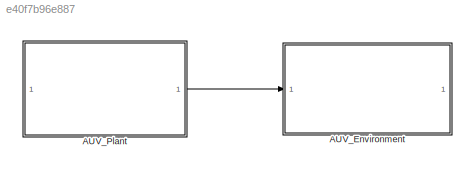
MODEL slx_e40f7b96e887
KIND model
CONFIG AbsTol = auto
CONFIG EnableMultiTasking = off
CONFIG FixedStep = auto
CONFIG MaxStep = auto
CONFIG MinStep = auto
CONFIG RelTol = 1e-3
CONFIG SampleTimeConstraint = Unconstrained
CONFIG SolverName = VariableStepAuto
CONFIG StartTime = 0.0
CONFIG StopTime = 10.0
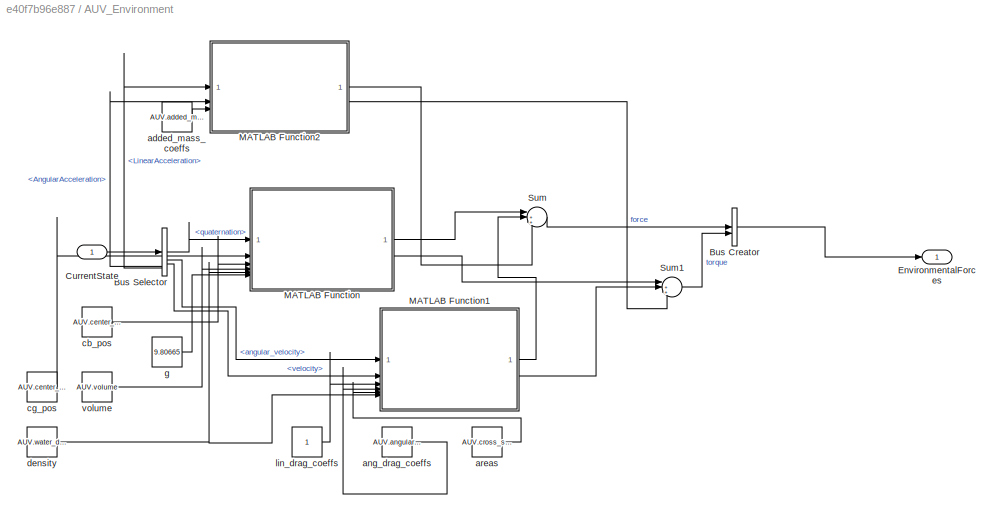
BLOCK [SubSystem] AUV_Environment
BLOCK [BusCreator] AUV_Environment/Bus Creator
  DisplayOption = bar
  InheritFromInputs = on
  Inputs = 2
BLOCK [BusSelector] AUV_Environment/Bus Selector
  OutputSignals = quaternation,angular_velocity,velocity,AngularAcceleration,LinearAcceleration
BLOCK [Inport] AUV_Environment/CurrentState
BLOCK [Outport] AUV_Environment/EnvironmentalForces
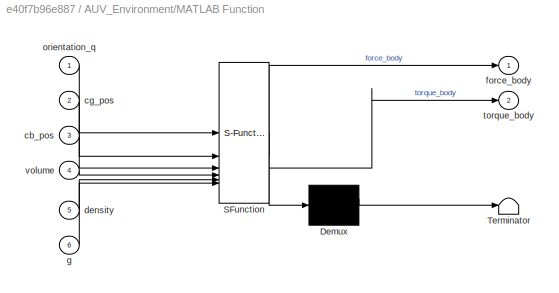
BLOCK [SubSystem] AUV_Environment/MATLAB Function
  ErrorFcn = Stateflow.Translate.translate
  PermitHierarchicalResolution = ExplicitOnly
  SFBlockType = MATLAB Function
  TreatAsAtomicUnit = on
BLOCK [Demux] AUV_Environment/MATLAB Function/ Demux 
  Outputs = 1
BLOCK [S-Function] AUV_Environment/MATLAB Function/ SFunction 
  EnableBusSupport = on
  FunctionName = sf_sfun
  PortCounts = [6 3]
  SFcnIsStateOwnerBlock = off
  SFunctionDeploymentMode = off
  Tag = Stateflow S-Function 2
BLOCK [Terminator] AUV_Environment/MATLAB Function/ Terminator 
BLOCK [Inport] AUV_Environment/MATLAB Function/cb_pos
  Port = 3
BLOCK [Inport] AUV_Environment/MATLAB Function/cg_pos
  Port = 2
BLOCK [Inport] AUV_Environment/MATLAB Function/density
  Port = 5
BLOCK [Outport] AUV_Environment/MATLAB Function/force_body
BLOCK [Inport] AUV_Environment/MATLAB Function/g
  Port = 6
BLOCK [Inport] AUV_Environment/MATLAB Function/orientation_q
BLOCK [Outport] AUV_Environment/MATLAB Function/torque_body
  Port = 2
BLOCK [Inport] AUV_Environment/MATLAB Function/volume
  Port = 4
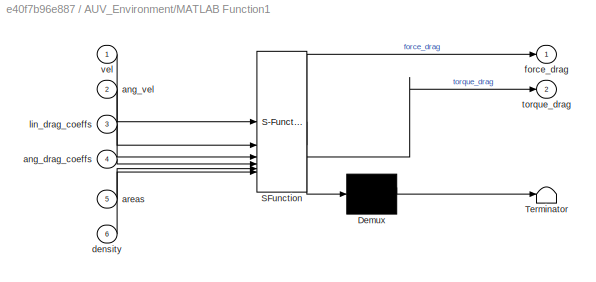
BLOCK [SubSystem] AUV_Environment/MATLAB Function1
  ErrorFcn = Stateflow.Translate.translate
  PermitHierarchicalResolution = ExplicitOnly
  SFBlockType = MATLAB Function
  TreatAsAtomicUnit = on
BLOCK [Demux] AUV_Environment/MATLAB Function1/ Demux 
  Outputs = 1
BLOCK [S-Function] AUV_Environment/MATLAB Function1/ SFunction 
  EnableBusSupport = on
  FunctionName = sf_sfun
  PortCounts = [6 3]
  SFcnIsStateOwnerBlock = off
  SFunctionDeploymentMode = off
  Tag = Stateflow S-Function 1
BLOCK [Terminator] AUV_Environment/MATLAB Function1/ Terminator 
BLOCK [Inport] AUV_Environment/MATLAB Function1/ang_drag_coeffs
  Port = 4
BLOCK [Inport] AUV_Environment/MATLAB Function1/ang_vel
  Port = 2
BLOCK [Inport] AUV_Environment/MATLAB Function1/areas
  Port = 5
BLOCK [Inport] AUV_Environment/MATLAB Function1/density
  Port = 6
BLOCK [Outport] AUV_Environment/MATLAB Function1/force_drag
BLOCK [Inport] AUV_Environment/MATLAB Function1/lin_drag_coeffs
  Port = 3
BLOCK [Outport] AUV_Environment/MATLAB Function1/torque_drag
  Port = 2
BLOCK [Inport] AUV_Environment/MATLAB Function1/vel
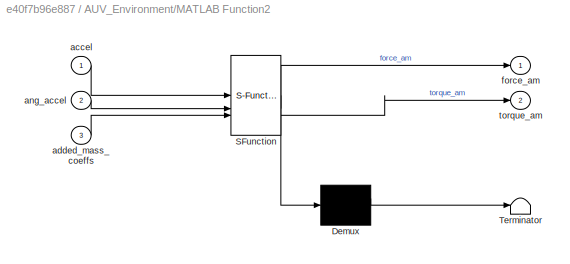
BLOCK [SubSystem] AUV_Environment/MATLAB Function2
  ErrorFcn = Stateflow.Translate.translate
  PermitHierarchicalResolution = ExplicitOnly
  SFBlockType = MATLAB Function
  TreatAsAtomicUnit = on
BLOCK [Demux] AUV_Environment/MATLAB Function2/ Demux 
  Outputs = 1
BLOCK [S-Function] AUV_Environment/MATLAB Function2/ SFunction 
  EnableBusSupport = off
  FunctionName = sf_sfun
  PortCounts = [3 3]
  SFcnIsStateOwnerBlock = off
  SFunctionDeploymentMode = off
  Tag = Stateflow S-Function 3
BLOCK [Terminator] AUV_Environment/MATLAB Function2/ Terminator 
BLOCK [Inport] AUV_Environment/MATLAB Function2/accel
BLOCK [Inport] AUV_Environment/MATLAB Function2/added_mass_coeffs
  Port = 3
BLOCK [Inport] AUV_Environment/MATLAB Function2/ang_accel
  Port = 2
BLOCK [Outport] AUV_Environment/MATLAB Function2/force_am
BLOCK [Outport] AUV_Environment/MATLAB Function2/torque_am
  Port = 2
BLOCK [Sum] AUV_Environment/Sum
  Inputs = |+++
BLOCK [Sum] AUV_Environment/Sum1
  Inputs = |+++
BLOCK [Constant] AUV_Environment/added_mass_coeffs
  Value = AUV.added_mass
BLOCK [Constant] AUV_Environment/ang_drag_coeffs
  Value = AUV.angular_drag_coeffs
BLOCK [Constant] AUV_Environment/areas
  Value = AUV.cross_sectional_areas
BLOCK [Constant] AUV_Environment/cb_pos
  Value = AUV.center_of_buoyancy
BLOCK [Constant] AUV_Environment/cg_pos
  Value = AUV.center_of_gravity
BLOCK [Constant] AUV_Environment/density
  Value = AUV.water_density
BLOCK [Constant] AUV_Environment/g
  Value = 9.80665
BLOCK [Constant] AUV_Environment/lin_drag_coeffs
BLOCK [Constant] AUV_Environment/volume
  Value = AUV.volume
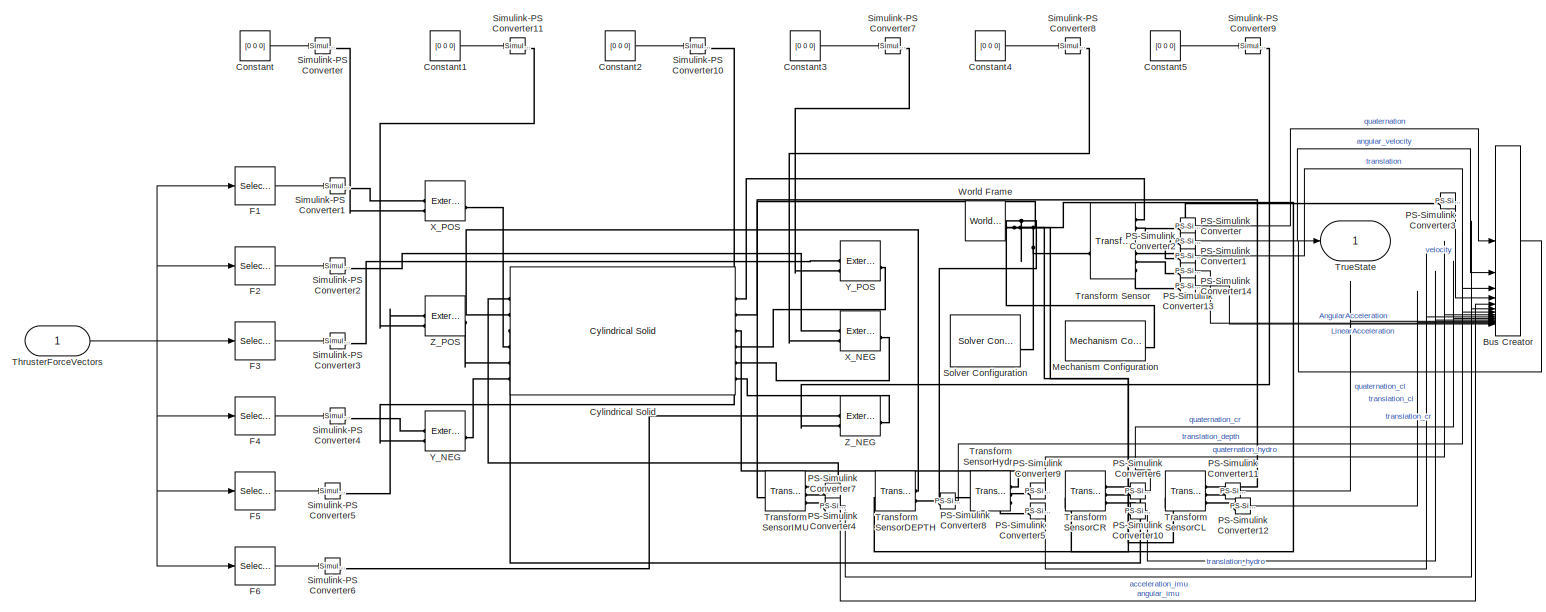
[diagram: AUV_Plant - part 1/1, most of the canvas]
BLOCK [SubSystem] AUV_Plant
BLOCK [BusCreator] AUV_Plant/Bus Creator
  DisplayOption = bar
  InheritFromInputs = on
  Inputs = 15
BLOCK [Constant] AUV_Plant/Constant
  Value = [0 0 0]
BLOCK [Constant] AUV_Plant/Constant1
  Value = [0 0 0]
BLOCK [Constant] AUV_Plant/Constant2
  Value = [0 0 0]
BLOCK [Constant] AUV_Plant/Constant3
  Value = [0 0 0]
BLOCK [Constant] AUV_Plant/Constant4
  Value = [0 0 0]
BLOCK [Constant] AUV_Plant/Constant5
  Value = [0 0 0]
BLOCK [Reference] AUV_Plant/Cylindrical Solid  REF=sm_lib/Body Elements/Cylindrical Solid
  SourceBlock = sm_lib/Body Elements/Cylindrical Solid
  SourceType = Cylindrical Solid
BLOCK [Selector] AUV_Plant/F1
  IndexOptions = Index vector (dialog),Select all
  Indices = 1,1
  InputPortWidth = 3
  NumberOfDimensions = 2
  OutputSizes = 1,1
BLOCK [Selector] AUV_Plant/F2
  IndexOptions = Index vector (dialog),Select all
  Indices = 2,1
  InputPortWidth = 3
  NumberOfDimensions = 2
  OutputSizes = 1,1
BLOCK [Selector] AUV_Plant/F3
  IndexOptions = Index vector (dialog),Select all
  Indices = 3,1
  InputPortWidth = 3
  NumberOfDimensions = 2
  OutputSizes = 1,1
BLOCK [Selector] AUV_Plant/F4
  IndexOptions = Index vector (dialog),Select all
  Indices = 4,1
  InputPortWidth = 3
  NumberOfDimensions = 2
  OutputSizes = 1,1
BLOCK [Selector] AUV_Plant/F5
  IndexOptions = Index vector (dialog),Select all
  Indices = 5,1
  InputPortWidth = 3
  NumberOfDimensions = 2
  OutputSizes = 1,1
BLOCK [Selector] AUV_Plant/F6
  IndexOptions = Index vector (dialog),Select all
  Indices = 6,1
  InputPortWidth = 3
  NumberOfDimensions = 2
  OutputSizes = 1,1
BLOCK [Reference] AUV_Plant/Mechanism Configuration  REF=sm_lib/Utilities/Mechanism
Configuration
  NameLocation = top
  SourceBlock = sm_lib/Utilities/Mechanism\nConfiguration
  SourceType = Mechanism\nConfiguration
BLOCK [Reference] AUV_Plant/PS-Simulink Converter  REF=nesl_utility/PS-Simulink
Converter
  SourceBlock = nesl_utility/PS-Simulink\nConverter
  SourceType = PS-Simulink\nConverter
BLOCK [Reference] AUV_Plant/PS-Simulink Converter1  REF=nesl_utility/PS-Simulink
Converter
  SourceBlock = nesl_utility/PS-Simulink\nConverter
  SourceType = PS-Simulink\nConverter
BLOCK [Reference] AUV_Plant/PS-Simulink Converter10  REF=nesl_utility/PS-Simulink
Converter
  SourceBlock = nesl_utility/PS-Simulink\nConverter
  SourceType = PS-Simulink\nConverter
BLOCK [Reference] AUV_Plant/PS-Simulink Converter11  REF=nesl_utility/PS-Simulink
Converter
  SourceBlock = nesl_utility/PS-Simulink\nConverter
  SourceType = PS-Simulink\nConverter
BLOCK [Reference] AUV_Plant/PS-Simulink Converter12  REF=nesl_utility/PS-Simulink
Converter
  SourceBlock = nesl_utility/PS-Simulink\nConverter
  SourceType = PS-Simulink\nConverter
BLOCK [Reference] AUV_Plant/PS-Simulink Converter13  REF=nesl_utility/PS-Simulink
Converter
  SourceBlock = nesl_utility/PS-Simulink\nConverter
  SourceType = PS-Simulink\nConverter
BLOCK [Reference] AUV_Plant/PS-Simulink Converter14  REF=nesl_utility/PS-Simulink
Converter
  SourceBlock = nesl_utility/PS-Simulink\nConverter
  SourceType = PS-Simulink\nConverter
BLOCK [Reference] AUV_Plant/PS-Simulink Converter2  REF=nesl_utility/PS-Simulink
Converter
  SourceBlock = nesl_utility/PS-Simulink\nConverter
  SourceType = PS-Simulink\nConverter
BLOCK [Reference] AUV_Plant/PS-Simulink Converter3  REF=nesl_utility/PS-Simulink
Converter
  SourceBlock = nesl_utility/PS-Simulink\nConverter
  SourceType = PS-Simulink\nConverter
BLOCK [Reference] AUV_Plant/PS-Simulink Converter4  REF=nesl_utility/PS-Simulink
Converter
  SourceBlock = nesl_utility/PS-Simulink\nConverter
  SourceType = PS-Simulink\nConverter
BLOCK [Reference] AUV_Plant/PS-Simulink Converter5  REF=nesl_utility/PS-Simulink
Converter
  SourceBlock = nesl_utility/PS-Simulink\nConverter
  SourceType = PS-Simulink\nConverter
BLOCK [Reference] AUV_Plant/PS-Simulink Converter6  REF=nesl_utility/PS-Simulink
Converter
  SourceBlock = nesl_utility/PS-Simulink\nConverter
  SourceType = PS-Simulink\nConverter
BLOCK [Reference] AUV_Plant/PS-Simulink Converter7  REF=nesl_utility/PS-Simulink
Converter
  SourceBlock = nesl_utility/PS-Simulink\nConverter
  SourceType = PS-Simulink\nConverter
BLOCK [Reference] AUV_Plant/PS-Simulink Converter8  REF=nesl_utility/PS-Simulink
Converter
  SourceBlock = nesl_utility/PS-Simulink\nConverter
  SourceType = PS-Simulink\nConverter
BLOCK [Reference] AUV_Plant/PS-Simulink Converter9  REF=nesl_utility/PS-Simulink
Converter
  SourceBlock = nesl_utility/PS-Simulink\nConverter
  SourceType = PS-Simulink\nConverter
BLOCK [Reference] AUV_Plant/Simulink-PS Converter  REF=nesl_utility/Simulink-PS
Converter
  SourceBlock = nesl_utility/Simulink-PS\nConverter
  SourceType = Simulink-PS\nConverter
BLOCK [Reference] AUV_Plant/Simulink-PS Converter1  REF=nesl_utility/Simulink-PS
Converter
  SourceBlock = nesl_utility/Simulink-PS\nConverter
  SourceType = Simulink-PS\nConverter
BLOCK [Reference] AUV_Plant/Simulink-PS Converter10  REF=nesl_utility/Simulink-PS
Converter
  SourceBlock = nesl_utility/Simulink-PS\nConverter
  SourceType = Simulink-PS\nConverter
BLOCK [Reference] AUV_Plant/Simulink-PS Converter11  REF=nesl_utility/Simulink-PS
Converter
  SourceBlock = nesl_utility/Simulink-PS\nConverter
  SourceType = Simulink-PS\nConverter
BLOCK [Reference] AUV_Plant/Simulink-PS Converter2  REF=nesl_utility/Simulink-PS
Converter
  SourceBlock = nesl_utility/Simulink-PS\nConverter
  SourceType = Simulink-PS\nConverter
BLOCK [Reference] AUV_Plant/Simulink-PS Converter3  REF=nesl_utility/Simulink-PS
Converter
  SourceBlock = nesl_utility/Simulink-PS\nConverter
  SourceType = Simulink-PS\nConverter
BLOCK [Reference] AUV_Plant/Simulink-PS Converter4  REF=nesl_utility/Simulink-PS
Converter
  SourceBlock = nesl_utility/Simulink-PS\nConverter
  SourceType = Simulink-PS\nConverter
BLOCK [Reference] AUV_Plant/Simulink-PS Converter5  REF=nesl_utility/Simulink-PS
Converter
  SourceBlock = nesl_utility/Simulink-PS\nConverter
  SourceType = Simulink-PS\nConverter
BLOCK [Reference] AUV_Plant/Simulink-PS Converter6  REF=nesl_utility/Simulink-PS
Converter
  SourceBlock = nesl_utility/Simulink-PS\nConverter
  SourceType = Simulink-PS\nConverter
BLOCK [Reference] AUV_Plant/Simulink-PS Converter7  REF=nesl_utility/Simulink-PS
Converter
  SourceBlock = nesl_utility/Simulink-PS\nConverter
  SourceType = Simulink-PS\nConverter
BLOCK [Reference] AUV_Plant/Simulink-PS Converter8  REF=nesl_utility/Simulink-PS
Converter
  SourceBlock = nesl_utility/Simulink-PS\nConverter
  SourceType = Simulink-PS\nConverter
BLOCK [Reference] AUV_Plant/Simulink-PS Converter9  REF=nesl_utility/Simulink-PS
Converter
  SourceBlock = nesl_utility/Simulink-PS\nConverter
  SourceType = Simulink-PS\nConverter
BLOCK [Reference] AUV_Plant/Solver Configuration  REF=nesl_utility/Solver
Configuration
  SourceBlock = nesl_utility/Solver\nConfiguration
  SourceType = Solver\nConfiguration
BLOCK [Inport] AUV_Plant/ThrusterForceVectors
  PortDimensions = [6 3]
BLOCK [Reference] AUV_Plant/Transform Sensor  REF=sm_lib/Frames and
Transforms/Transform
Sensor
  SourceBlock = sm_lib/Frames and\nTransforms/Transform\nSensor
  SourceType = Transform\nSensor
BLOCK [Reference] AUV_Plant/Transform SensorCL  REF=sm_lib/Frames and
Transforms/Transform
Sensor
  SourceBlock = sm_lib/Frames and\nTransforms/Transform\nSensor
  SourceType = Transform\nSensor
BLOCK [Reference] AUV_Plant/Transform SensorCR  REF=sm_lib/Frames and
Transforms/Transform
Sensor
  SourceBlock = sm_lib/Frames and\nTransforms/Transform\nSensor
  SourceType = Transform\nSensor
BLOCK [Reference] AUV_Plant/Transform SensorDEPTH  REF=sm_lib/Frames and
Transforms/Transform
Sensor
  SourceBlock = sm_lib/Frames and\nTransforms/Transform\nSensor
  SourceType = Transform\nSensor
BLOCK [Reference] AUV_Plant/Transform SensorHydro  REF=sm_lib/Frames and
Transforms/Transform
Sensor
  SourceBlock = sm_lib/Frames and\nTransforms/Transform\nSensor
  SourceType = Transform\nSensor
BLOCK [Reference] AUV_Plant/Transform SensorIMU  REF=sm_lib/Frames and
Transforms/Transform
Sensor
  SourceBlock = sm_lib/Frames and\nTransforms/Transform\nSensor
  SourceType = Transform\nSensor
BLOCK [Outport] AUV_Plant/TrueState
BLOCK [Reference] AUV_Plant/World Frame  REF=sm_lib/Frames and
Transforms/World Frame
  SourceBlock = sm_lib/Frames and\nTransforms/World Frame
  SourceType = World Frame
BLOCK [Reference] AUV_Plant/X_NEG  REF=sm_lib/Forces and
Torques/External Force
and Torque
  SourceBlock = sm_lib/Forces and\nTorques/External Force\nand Torque
  SourceType = External Force\nand Torque
BLOCK [Reference] AUV_Plant/X_POS  REF=sm_lib/Forces and
Torques/External Force
and Torque
  SourceBlock = sm_lib/Forces and\nTorques/External Force\nand Torque
  SourceType = External Force\nand Torque
BLOCK [Reference] AUV_Plant/Y_NEG  REF=sm_lib/Forces and
Torques/External Force
and Torque
  SourceBlock = sm_lib/Forces and\nTorques/External Force\nand Torque
  SourceType = External Force\nand Torque
BLOCK [Reference] AUV_Plant/Y_POS  REF=sm_lib/Forces and
Torques/External Force
and Torque
  SourceBlock = sm_lib/Forces and\nTorques/External Force\nand Torque
  SourceType = External Force\nand Torque
BLOCK [Reference] AUV_Plant/Z_NEG  REF=sm_lib/Forces and
Torques/External Force
and Torque
  SourceBlock = sm_lib/Forces and\nTorques/External Force\nand Torque
  SourceType = External Force\nand Torque
BLOCK [Reference] AUV_Plant/Z_POS  REF=sm_lib/Forces and
Torques/External Force
and Torque
  SourceBlock = sm_lib/Forces and\nTorques/External Force\nand Torque
  SourceType = External Force\nand Torque
LINE AUV_Environment/Bus Creator:1 -> AUV_Environment/EnvironmentalForces:1
LINE AUV_Environment/Bus Selector:1 -> AUV_Environment/MATLAB Function:1
LINE AUV_Environment/Bus Selector:2 -> AUV_Environment/MATLAB Function1:1
LINE AUV_Environment/Bus Selector:3 -> AUV_Environment/MATLAB Function1:2
LINE AUV_Environment/Bus Selector:4 -> AUV_Environment/MATLAB Function2:2
LINE AUV_Environment/Bus Selector:5 -> AUV_Environment/MATLAB Function2:1
LINE AUV_Environment/CurrentState:1 -> AUV_Environment/Bus Selector:1
LINE AUV_Environment/MATLAB Function1:1 -> AUV_Environment/Sum:2
LINE AUV_Environment/MATLAB Function1:2 -> AUV_Environment/Sum1:2
LINE AUV_Environment/MATLAB Function2:1 -> AUV_Environment/Sum:3
LINE AUV_Environment/MATLAB Function2:2 -> AUV_Environment/Sum1:3
LINE AUV_Environment/MATLAB Function:1 -> AUV_Environment/Sum:1
LINE AUV_Environment/MATLAB Function:2 -> AUV_Environment/Sum1:1
LINE AUV_Environment/Sum1:1 -> AUV_Environment/Bus Creator:2
LINE AUV_Environment/Sum:1 -> AUV_Environment/Bus Creator:1
LINE AUV_Environment/added_mass_coeffs:1 -> AUV_Environment/MATLAB Function2:3
LINE AUV_Environment/ang_drag_coeffs:1 -> AUV_Environment/MATLAB Function1:4
LINE AUV_Environment/areas:1 -> AUV_Environment/MATLAB Function1:5
LINE AUV_Environment/cb_pos:1 -> AUV_Environment/MATLAB Function:3
LINE AUV_Environment/cg_pos:1 -> AUV_Environment/MATLAB Function:2
NET AUV_Environment/density:1 -> AUV_Environment/MATLAB Function1:6, AUV_Environment/MATLAB Function:5
LINE AUV_Environment/g:1 -> AUV_Environment/MATLAB Function:6
LINE AUV_Environment/lin_drag_coeffs:1 -> AUV_Environment/MATLAB Function1:3
LINE AUV_Environment/volume:1 -> AUV_Environment/MATLAB Function:4
LINE AUV_Plant/Bus Creator:1 -> AUV_Plant/TrueState:1
LINE AUV_Plant/Constant1:1 -> AUV_Plant/Simulink-PS Converter11:1
LINE AUV_Plant/Constant2:1 -> AUV_Plant/Simulink-PS Converter10:1
LINE AUV_Plant/Constant3:1 -> AUV_Plant/Simulink-PS Converter7:1
LINE AUV_Plant/Constant4:1 -> AUV_Plant/Simulink-PS Converter8:1
LINE AUV_Plant/Constant5:1 -> AUV_Plant/Simulink-PS Converter9:1
LINE AUV_Plant/Constant:1 -> AUV_Plant/Simulink-PS Converter:1
LINE AUV_Plant/F1:1 -> AUV_Plant/Simulink-PS Converter1:1
LINE AUV_Plant/F2:1 -> AUV_Plant/Simulink-PS Converter2:1
LINE AUV_Plant/F3:1 -> AUV_Plant/Simulink-PS Converter3:1
LINE AUV_Plant/F4:1 -> AUV_Plant/Simulink-PS Converter4:1
LINE AUV_Plant/F5:1 -> AUV_Plant/Simulink-PS Converter5:1
LINE AUV_Plant/F6:1 -> AUV_Plant/Simulink-PS Converter6:1
LINE AUV_Plant/PS-Simulink Converter10:1 -> AUV_Plant/Bus Creator:11
LINE AUV_Plant/PS-Simulink Converter11:1 -> AUV_Plant/Bus Creator:12
LINE AUV_Plant/PS-Simulink Converter12:1 -> AUV_Plant/Bus Creator:13
LINE AUV_Plant/PS-Simulink Converter13:1 -> AUV_Plant/Bus Creator:14
LINE AUV_Plant/PS-Simulink Converter14:1 -> AUV_Plant/Bus Creator:15
LINE AUV_Plant/PS-Simulink Converter1:1 -> AUV_Plant/Bus Creator:3
LINE AUV_Plant/PS-Simulink Converter2:1 -> AUV_Plant/Bus Creator:2
LINE AUV_Plant/PS-Simulink Converter3:1 -> AUV_Plant/Bus Creator:4
LINE AUV_Plant/PS-Simulink Converter4:1 -> AUV_Plant/Bus Creator:5
LINE AUV_Plant/PS-Simulink Converter5:1 -> AUV_Plant/Bus Creator:9
LINE AUV_Plant/PS-Simulink Converter6:1 -> AUV_Plant/Bus Creator:10
LINE AUV_Plant/PS-Simulink Converter7:1 -> AUV_Plant/Bus Creator:6
LINE AUV_Plant/PS-Simulink Converter8:1 -> AUV_Plant/Bus Creator:7
LINE AUV_Plant/PS-Simulink Converter9:1 -> AUV_Plant/Bus Creator:8
LINE AUV_Plant/PS-Simulink Converter:1 -> AUV_Plant/Bus Creator:1
NET AUV_Plant/ThrusterForceVectors:1 -> AUV_Plant/F1:1, AUV_Plant/F2:1, AUV_Plant/F3:1, AUV_Plant/F4:1, AUV_Plant/F5:1, AUV_Plant/F6:1
LINE AUV_Plant:1 -> AUV_Environment:1
PLINE AUV_Plant/Cylindrical Solid:LConn1 -- AUV_Plant/Transform SensorIMU:RConn1
PLINE AUV_Plant/Cylindrical Solid:LConn2 -- AUV_Plant/Transform SensorDEPTH:RConn1
PLINE AUV_Plant/Cylindrical Solid:LConn3 -- AUV_Plant/Transform SensorCR:RConn1
PLINE AUV_Plant/Cylindrical Solid:LConn4 -- AUV_Plant/X_POS:RConn1
PLINE AUV_Plant/Cylindrical Solid:LConn5 -- AUV_Plant/Z_POS:RConn1
PLINE AUV_Plant/Cylindrical Solid:LConn6 -- AUV_Plant/Y_NEG:RConn1
PLINE AUV_Plant/Cylindrical Solid:RConn1 -- AUV_Plant/Transform Sensor:RConn1
PLINE AUV_Plant/Cylindrical Solid:RConn2 -- AUV_Plant/Transform SensorCL:RConn1
PLINE AUV_Plant/Cylindrical Solid:RConn3 -- AUV_Plant/Transform SensorHydro:RConn1
PLINE AUV_Plant/Cylindrical Solid:RConn4 -- AUV_Plant/Y_POS:RConn1
PLINE AUV_Plant/Cylindrical Solid:RConn5 -- AUV_Plant/X_NEG:RConn1
PLINE AUV_Plant/Cylindrical Solid:RConn6 -- AUV_Plant/Z_NEG:RConn1
PNET net1: AUV_Plant/Mechanism Configuration:RConn1 -- AUV_Plant/Solver Configuration:RConn1 -- AUV_Plant/Transform Sensor:LConn1 -- AUV_Plant/Transform SensorCL:LConn1 -- AUV_Plant/Transform SensorCR:LConn1 -- AUV_Plant/Transform SensorDEPTH:LConn1 -- AUV_Plant/Transform SensorHydro:LConn1 -- AUV_Plant/Transform SensorIMU:LConn1 -- AUV_Plant/World Frame:RConn1
PLINE AUV_Plant/PS-Simulink Converter10:LConn1 -- AUV_Plant/Transform SensorCR:RConn3
PLINE AUV_Plant/PS-Simulink Converter11:LConn1 -- AUV_Plant/Transform SensorCL:RConn2
PLINE AUV_Plant/PS-Simulink Converter12:LConn1 -- AUV_Plant/Transform SensorCL:RConn3
PLINE AUV_Plant/PS-Simulink Converter13:LConn1 -- AUV_Plant/Transform Sensor:RConn6
PLINE AUV_Plant/PS-Simulink Converter14:LConn1 -- AUV_Plant/Transform Sensor:RConn7
PLINE AUV_Plant/PS-Simulink Converter1:LConn1 -- AUV_Plant/Transform Sensor:RConn4
PLINE AUV_Plant/PS-Simulink Converter2:LConn1 -- AUV_Plant/Transform Sensor:RConn3
PLINE AUV_Plant/PS-Simulink Converter3:LConn1 -- AUV_Plant/Transform Sensor:RConn5
PLINE AUV_Plant/PS-Simulink Converter4:LConn1 -- AUV_Plant/Transform SensorIMU:RConn2
PLINE AUV_Plant/PS-Simulink Converter5:LConn1 -- AUV_Plant/Transform SensorHydro:RConn3
PLINE AUV_Plant/PS-Simulink Converter6:LConn1 -- AUV_Plant/Transform SensorCR:RConn2
PLINE AUV_Plant/PS-Simulink Converter7:LConn1 -- AUV_Plant/Transform SensorIMU:RConn3
PLINE AUV_Plant/PS-Simulink Converter8:LConn1 -- AUV_Plant/Transform SensorDEPTH:RConn2
PLINE AUV_Plant/PS-Simulink Converter9:LConn1 -- AUV_Plant/Transform SensorHydro:RConn2
PLINE AUV_Plant/PS-Simulink Converter:LConn1 -- AUV_Plant/Transform Sensor:RConn2
PLINE AUV_Plant/Simulink-PS Converter10:RConn1 -- AUV_Plant/Y_NEG:LConn2
PLINE AUV_Plant/Simulink-PS Converter11:RConn1 -- AUV_Plant/Z_POS:LConn2
PLINE AUV_Plant/Simulink-PS Converter1:RConn1 -- AUV_Plant/X_POS:LConn1
PLINE AUV_Plant/Simulink-PS Converter2:RConn1 -- AUV_Plant/X_NEG:LConn1
PLINE AUV_Plant/Simulink-PS Converter3:RConn1 -- AUV_Plant/Y_POS:LConn1
PLINE AUV_Plant/Simulink-PS Converter4:RConn1 -- AUV_Plant/Y_NEG:LConn1
PLINE AUV_Plant/Simulink-PS Converter5:RConn1 -- AUV_Plant/Z_POS:LConn1
PLINE AUV_Plant/Simulink-PS Converter6:RConn1 -- AUV_Plant/Z_NEG:LConn1
PLINE AUV_Plant/Simulink-PS Converter7:RConn1 -- AUV_Plant/Y_POS:LConn2
PLINE AUV_Plant/Simulink-PS Converter8:RConn1 -- AUV_Plant/X_NEG:LConn2
PLINE AUV_Plant/Simulink-PS Converter9:RConn1 -- AUV_Plant/Z_NEG:LConn2
PLINE AUV_Plant/Simulink-PS Converter:RConn1 -- AUV_Plant/X_POS:LConn2
note: NET lines group one-source signal fan-out (src -> all destinations, sorted); 1:1 wires keep LINE; PNET lines group multi-terminal physical nets as a canonical sorted terminal list (undirected conserving connections); 2-terminal nets keep the pairwise PLINE form
CHART AUV_Environment/MATLAB Function1 states=1 transitions=1
  STATE_LABEL 'eML_blk_kernel()'
  STATE_LABEL 'SCRIPT:\nfunction [force_drag, torque_drag] = drag_model(vel, ang_vel, lin_drag_coeffs, ang_drag_coeffs, areas, density)\n    % Calculates hydrodynamic drag forces and torques in the body frame\n    % vel:      Linear velocity vector [vx, vy, vz]\n    % ang_vel:  Angular velocity vector [p, q, r]\n\n    % --- Linear Drag ---\n    % Using the quadratic drag formula: Fd = -0.5 * rho * v^2 * Cd * A\n    % Th...<+464ch>'
CHART AUV_Environment/MATLAB Function states=1 transitions=1
  STATE_LABEL 'eML_blk_kernel()'
  STATE_LABEL "SCRIPT:\nfunction [force_body, torque_body] = buoyancy_model(orientation_q, cg_pos, cb_pos, volume, density, g)\n    % This function calculates buoyancy force and torque in the AUV's body frame.\n    % orientation_q: quaternion [w, x, y, z] from the plant\n    % cg_pos: Center of Gravity position vector [x, y, z] in body frame\n    % cb_pos: Center of Buoyancy position vector [x, y, z] in body frame\n\n ...<+648ch>"
CHART AUV_Environment/MATLAB Function2 states=1 transitions=1
  STATE_LABEL 'eML_blk_kernel()'
  STATE_LABEL 'SCRIPT:\nfunction [force_am, torque_am] = added_mass_model(accel, ang_accel, added_mass_coeffs)\n    % Calculates the forces and torques due to added mass.\n    % F = -m_added * acceleration\n\n    % Split the 6-element coeff vector into linear and angular parts\n    added_mass_linear = added_mass_coeffs(1:3);\n    added_mass_angular = added_mass_coeffs(4:6);\n\n    force_am = -added_mass_linear .* accel;\n...<+53ch>'
CHART  states=0 transitions=0
CHART  states=0 transitions=0
CHART  states=0 transitions=0
